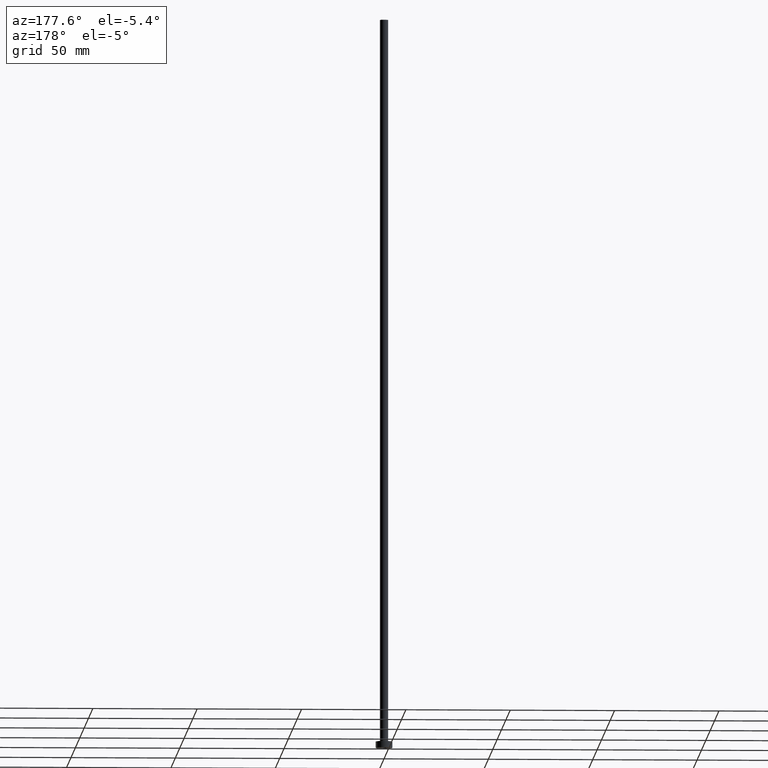
[diagram: clean part render]
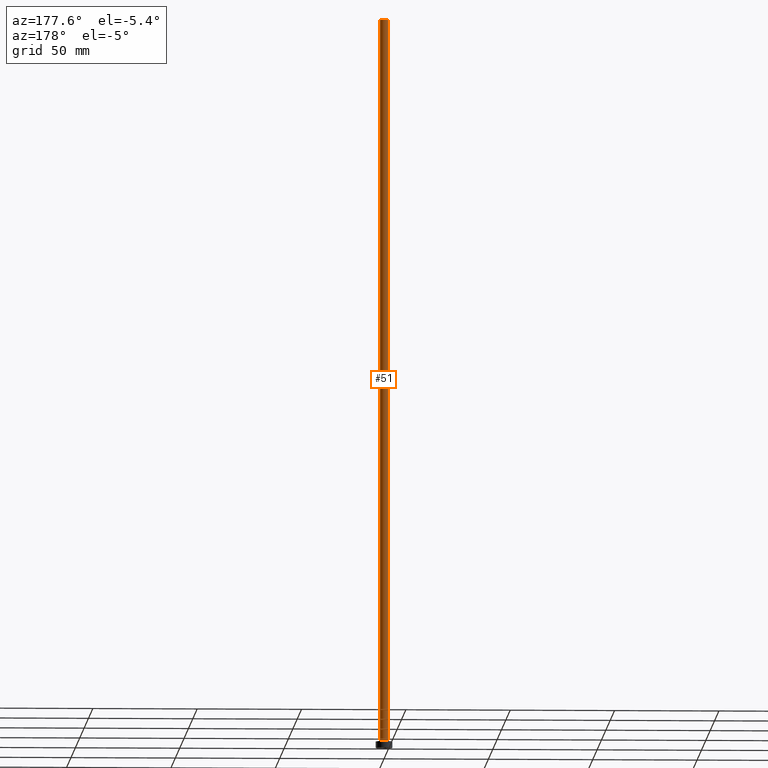
[diagram: same view with one face highlighted and labeled with its STEP entity id]
A machine part, auxiliary view. The second image highlights one B-rep face of the part: STEP entity #51.
In plain terms, the highlighted cylindrical surface (edge-blend (fillet) strip) has radius 2 mm, axis along (-0, -0, -1).
Its self-contained STEP definition (entity closure, byte-faithful):
#22 = ORIENTED_EDGE ( 'NONE', *, *, #26, .F. ) ;
#26 = EDGE_CURVE ( 'NONE', #344, #112, #301, .T. ) ;
#34 = VERTEX_POINT ( 'NONE', #376 ) ;
#51 = ADVANCED_FACE ( 'NONE', ( #303 ), #263, .T. ) ;
#78 = DIRECTION ( 'NONE',  ( -1.000000000000000000, 0.000000000000000000, 0.000000000000000000 ) ) ;
#94 = ORIENTED_EDGE ( 'NONE', *, *, #378, .T. ) ;
#96 = EDGE_CURVE ( 'NONE', #253, #344, #100, .T. ) ;
#98 = CIRCLE ( 'NONE', #243, 2.000000000000000000 ) ;
#100 = CIRCLE ( 'NONE', #445, 2.000000000000000000 ) ;
#112 = VERTEX_POINT ( 'NONE', #240 ) ;
#121 = CARTESIAN_POINT ( 'NONE',  ( -2.000000000000000000, 0.000000000000000000, 350.0000000000000000 ) ) ;
#135 = DIRECTION ( 'NONE',  ( 1.000000000000000000, 0.000000000000000000, 0.000000000000000000 ) ) ;
#137 = VECTOR ( 'NONE', #374, 1000.000000000000000 ) ;
#143 = DIRECTION ( 'NONE',  ( 0.000000000000000000, 0.000000000000000000, 1.000000000000000000 ) ) ;
#178 = CARTESIAN_POINT ( 'NONE',  ( 0.000000000000000000, 0.000000000000000000, 3.300000000000025135 ) ) ;
#195 = LINE ( 'NONE', #293, #272 ) ;
#211 = CARTESIAN_POINT ( 'NONE',  ( 2.000000000000000000, 2.449293598294706414E-16, 350.0000000000000000 ) ) ;
#217 = DIRECTION ( 'NONE',  ( 1.000000000000000000, 0.000000000000000000, 0.000000000000000000 ) ) ;
#218 = AXIS2_PLACEMENT_3D ( 'NONE', #294, #442, #78 ) ;
#240 = CARTESIAN_POINT ( 'NONE',  ( -2.000000000000000000, 0.000000000000000000, 3.300000000000025135 ) ) ;
#243 = AXIS2_PLACEMENT_3D ( 'NONE', #178, #143, #217 ) ;
#247 = EDGE_LOOP ( 'NONE', ( #323, #451, #94, #22 ) ) ;
#253 = VERTEX_POINT ( 'NONE', #211 ) ;
#263 = CYLINDRICAL_SURFACE ( 'NONE', #218, 2.000000000000000000 ) ;
#272 = VECTOR ( 'NONE', #443, 1000.000000000000000 ) ;
#293 = CARTESIAN_POINT ( 'NONE',  ( 2.000000000000000000, 2.449293598294706414E-16, 350.0000000000000000 ) ) ;
#294 = CARTESIAN_POINT ( 'NONE',  ( 0.000000000000000000, 0.000000000000000000, 350.0000000000000000 ) ) ;
#301 = LINE ( 'NONE', #121, #137 ) ;
#303 = FACE_OUTER_BOUND ( 'NONE', #247, .T. ) ;
#308 = DIRECTION ( 'NONE',  ( 0.000000000000000000, 0.000000000000000000, 1.000000000000000000 ) ) ;
#323 = ORIENTED_EDGE ( 'NONE', *, *, #96, .F. ) ;
#344 = VERTEX_POINT ( 'NONE', #461 ) ;
#374 = DIRECTION ( 'NONE',  ( -0.000000000000000000, -0.000000000000000000, -1.000000000000000000 ) ) ;
#376 = CARTESIAN_POINT ( 'NONE',  ( 2.000000000000000000, 2.449293598294706414E-16, 3.300000000000025135 ) ) ;
#378 = EDGE_CURVE ( 'NONE', #34, #112, #98, .T. ) ;
#389 = CARTESIAN_POINT ( 'NONE',  ( 0.000000000000000000, 0.000000000000000000, 350.0000000000000000 ) ) ;
#427 = EDGE_CURVE ( 'NONE', #253, #34, #195, .T. ) ;
#442 = DIRECTION ( 'NONE',  ( -0.000000000000000000, -0.000000000000000000, -1.000000000000000000 ) ) ;
#443 = DIRECTION ( 'NONE',  ( -0.000000000000000000, -0.000000000000000000, -1.000000000000000000 ) ) ;
#445 = AXIS2_PLACEMENT_3D ( 'NONE', #389, #308, #135 ) ;
#451 = ORIENTED_EDGE ( 'NONE', *, *, #427, .T. ) ;
#461 = CARTESIAN_POINT ( 'NONE',  ( -2.000000000000000000, 0.000000000000000000, 350.0000000000000000 ) ) ;